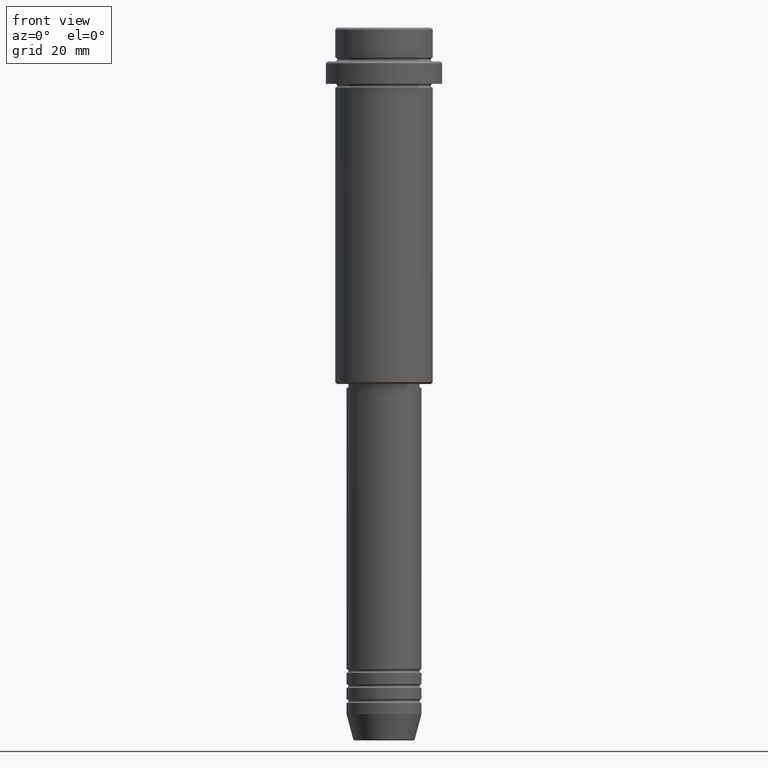
[diagram: clean part render]
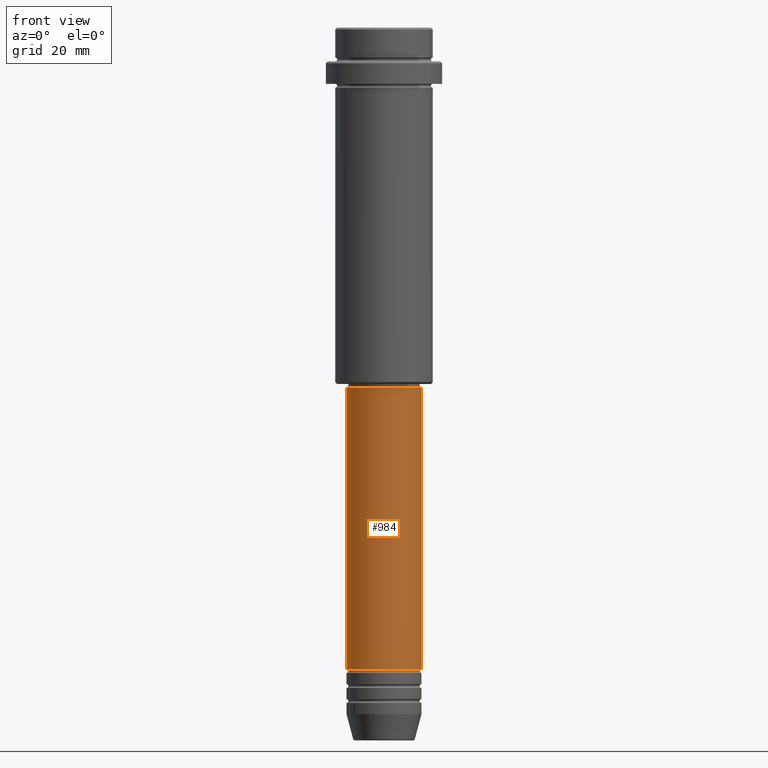
[diagram: same view with one face highlighted and labeled with its STEP entity id]
A machine part, front view. The second image highlights one B-rep face of the part: STEP entity #984.
In plain terms, the highlighted cylindrical surface (partial cylindrical patch) has radius 10 mm, axis along (-0, -0, 1).
Its self-contained STEP definition (entity closure, byte-faithful):
#2 = DIRECTION ( 'NONE',  ( -0.000000000000000000, -0.000000000000000000, 1.000000000000000000 ) ) ;
#6 = CIRCLE ( 'NONE', #1264, 10.00000000000000178 ) ;
#24 = CYLINDRICAL_SURFACE ( 'NONE', #54, 10.00000000000000178 ) ;
#54 = AXIS2_PLACEMENT_3D ( 'NONE', #426, #2, #343 ) ;
#98 = AXIS2_PLACEMENT_3D ( 'NONE', #1227, #383, #892 ) ;
#186 = LINE ( 'NONE', #926, #1207 ) ;
#225 = DIRECTION ( 'NONE',  ( -0.000000000000000000, -0.000000000000000000, 1.000000000000000000 ) ) ;
#292 = CARTESIAN_POINT ( 'NONE',  ( 10.00000000000000178, 0.000000000000000000, 0.000000000000000000 ) ) ;
#312 = ORIENTED_EDGE ( 'NONE', *, *, #429, .T. ) ;
#343 = DIRECTION ( 'NONE',  ( 1.000000000000000000, 0.000000000000000000, 0.000000000000000000 ) ) ;
#383 = DIRECTION ( 'NONE',  ( -0.000000000000000000, -0.000000000000000000, 1.000000000000000000 ) ) ;
#418 = DIRECTION ( 'NONE',  ( -0.000000000000000000, -0.000000000000000000, 1.000000000000000000 ) ) ;
#426 = CARTESIAN_POINT ( 'NONE',  ( 0.000000000000000000, 0.000000000000000000, 0.000000000000000000 ) ) ;
#429 = EDGE_CURVE ( 'NONE', #1121, #1195, #1073, .T. ) ;
#447 = FACE_OUTER_BOUND ( 'NONE', #843, .T. ) ;
#464 = CARTESIAN_POINT ( 'NONE',  ( 10.00000000000000000, 0.000000000000000000, -170.9999999999998863 ) ) ;
#502 = VERTEX_POINT ( 'NONE', #1196 ) ;
#633 = ORIENTED_EDGE ( 'NONE', *, *, #636, .T. ) ;
#636 = EDGE_CURVE ( 'NONE', #1044, #1121, #827, .T. ) ;
#643 = DIRECTION ( 'NONE',  ( 1.000000000000000000, 0.000000000000000000, 0.000000000000000000 ) ) ;
#772 = ORIENTED_EDGE ( 'NONE', *, *, #1034, .F. ) ;
#780 = CARTESIAN_POINT ( 'NONE',  ( 10.00000000000000178, 0.000000000000000000, -96.00000000000000000 ) ) ;
#800 = EDGE_CURVE ( 'NONE', #1044, #502, #186, .T. ) ;
#803 = VECTOR ( 'NONE', #418, 1000.000000000000000 ) ;
#827 = CIRCLE ( 'NONE', #98, 10.00000000000000000 ) ;
#843 = EDGE_LOOP ( 'NONE', ( #1274, #633, #312, #772 ) ) ;
#892 = DIRECTION ( 'NONE',  ( 1.000000000000000000, 0.000000000000000000, 0.000000000000000000 ) ) ;
#926 = CARTESIAN_POINT ( 'NONE',  ( -10.00000000000000178, 1.224646799147353454E-15, 0.000000000000000000 ) ) ;
#984 = ADVANCED_FACE ( 'NONE', ( #447 ), #24, .T. ) ;
#1034 = EDGE_CURVE ( 'NONE', #502, #1195, #6, .T. ) ;
#1044 = VERTEX_POINT ( 'NONE', #1218 ) ;
#1073 = LINE ( 'NONE', #292, #803 ) ;
#1121 = VERTEX_POINT ( 'NONE', #464 ) ;
#1195 = VERTEX_POINT ( 'NONE', #780 ) ;
#1196 = CARTESIAN_POINT ( 'NONE',  ( -10.00000000000000178, 1.224646799147353454E-15, -96.00000000000000000 ) ) ;
#1207 = VECTOR ( 'NONE', #1276, 1000.000000000000000 ) ;
#1218 = CARTESIAN_POINT ( 'NONE',  ( -10.00000000000000000, 1.224646799147353256E-15, -170.9999999999998863 ) ) ;
#1227 = CARTESIAN_POINT ( 'NONE',  ( 0.000000000000000000, 0.000000000000000000, -170.9999999999998863 ) ) ;
#1264 = AXIS2_PLACEMENT_3D ( 'NONE', #1325, #225, #643 ) ;
#1274 = ORIENTED_EDGE ( 'NONE', *, *, #800, .F. ) ;
#1276 = DIRECTION ( 'NONE',  ( -0.000000000000000000, -0.000000000000000000, 1.000000000000000000 ) ) ;
#1325 = CARTESIAN_POINT ( 'NONE',  ( 0.000000000000000000, 0.000000000000000000, -96.00000000000000000 ) ) ;